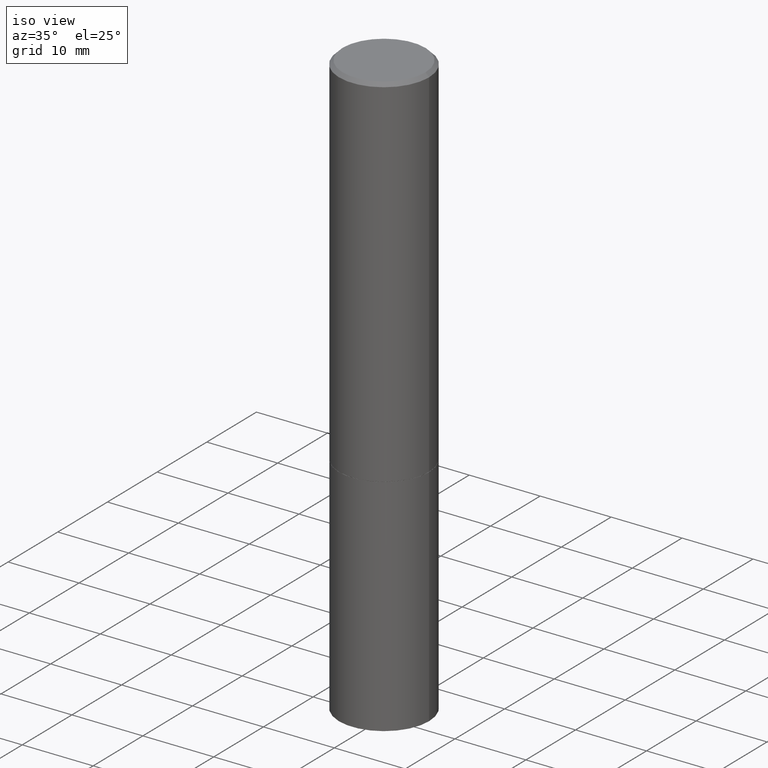
[diagram: clean part render]
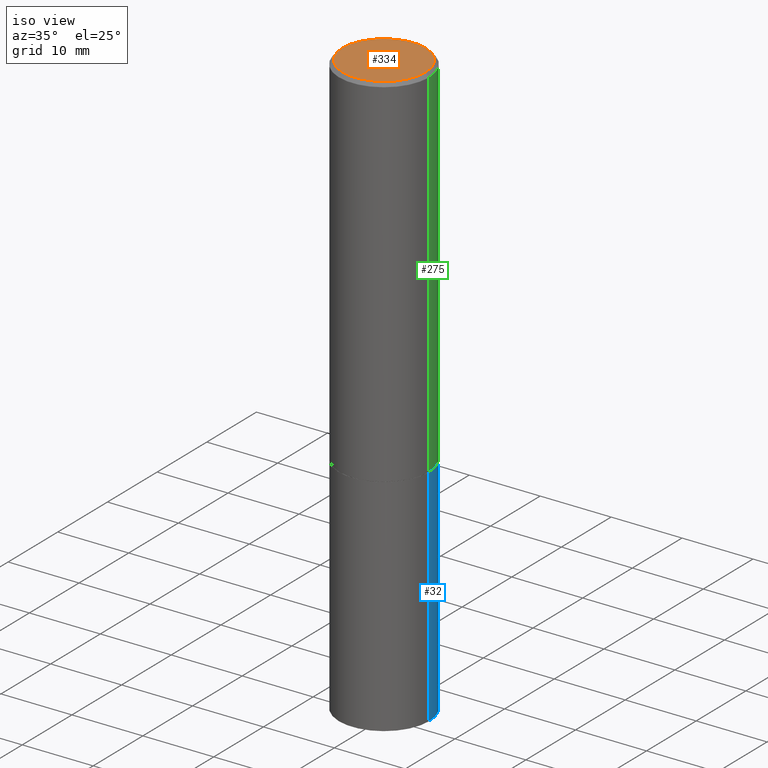
[diagram: same view with three faces highlighted in distinct colors, each labeled with its STEP entity id]
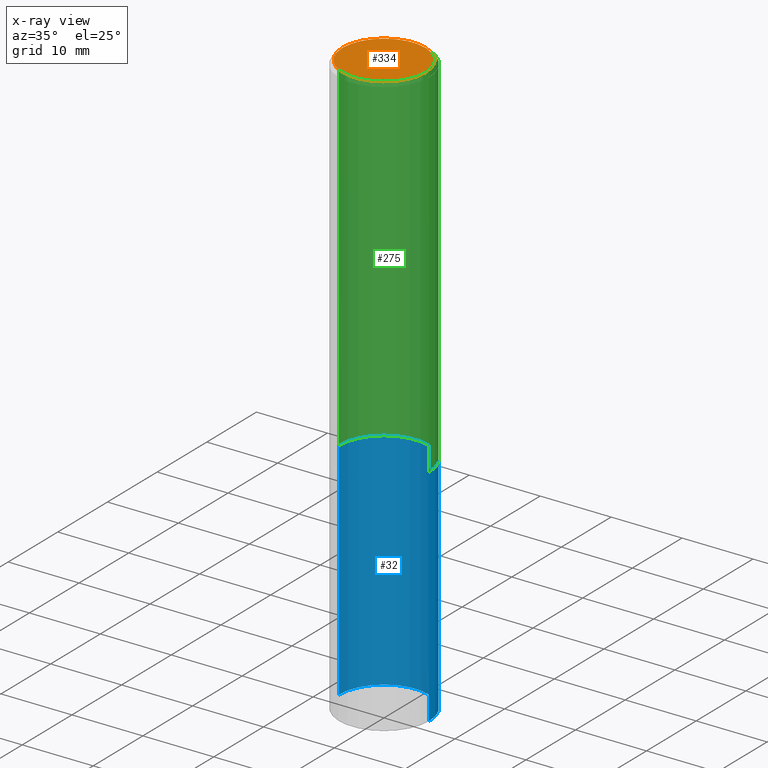
[diagram: x-ray of the same camera — body ghosted, the three highlighted faces saturated]
A machine part, iso view with three faces highlighted in distinct colors.
The next image is the same camera in x-ray (body ghosted, the three faces saturated) — at least one of them is partly hidden behind the body in this view.
Their STEP definitions:

[orange] entity #334 — the highlighted planar face has unit normal (0, -0, -1).
#5 = DIRECTION ( 'NONE',  ( 1.000000000000000000, -6.982962677686266711E-15, 4.876225828469314487E-29 ) ) ;
#29 = VERTEX_POINT ( 'NONE', #343 ) ;
#56 = EDGE_LOOP ( 'NONE', ( #163, #224 ) ) ;
#64 = DIRECTION ( 'NONE',  ( 2.438088387897960049E-29, -3.491481338843145188E-15, -1.000000000000000000 ) ) ;
#65 = EDGE_CURVE ( 'NONE', #213, #29, #298, .T. ) ;
#74 = AXIS2_PLACEMENT_3D ( 'NONE', #357, #138, #255 ) ;
#79 = CIRCLE ( 'NONE', #238, 0.2299999999999997324 ) ;
#124 = FACE_OUTER_BOUND ( 'NONE', #56, .T. ) ;
#127 = EDGE_CURVE ( 'NONE', #29, #213, #79, .T. ) ;
#138 = DIRECTION ( 'NONE',  ( -2.445468806185136597E-29, 3.491481338843145583E-15, 1.000000000000000000 ) ) ;
#142 = DIRECTION ( 'NONE',  ( -2.445468806185136597E-29, 3.491481338843145583E-15, 1.000000000000000000 ) ) ;
#163 = ORIENTED_EDGE ( 'NONE', *, *, #65, .T. ) ;
#204 = CARTESIAN_POINT ( 'NONE',  ( -0.2299999999999997324, 1.640996229256270744E-15, 4.268512490089056766E-18 ) ) ;
#208 = CARTESIAN_POINT ( 'NONE',  ( 1.606081415867839292E-15, 0.2299999999999997324, -8.009064516888723911E-16 ) ) ;
#213 = VERTEX_POINT ( 'NONE', #204 ) ;
#224 = ORIENTED_EDGE ( 'NONE', *, *, #127, .T. ) ;
#238 = AXIS2_PLACEMENT_3D ( 'NONE', #256, #142, #5 ) ;
#255 = DIRECTION ( 'NONE',  ( 1.000000000000000000, -6.982962677686266711E-15, 4.876225828469314487E-29 ) ) ;
#256 = CARTESIAN_POINT ( 'NONE',  ( -1.043851414335219820E-46, 1.490343170380447200E-32, 4.268512490100411279E-18 ) ) ;
#260 = DIRECTION ( 'NONE',  ( -1.000000000000000000, 6.982962677686265922E-15, -4.876176775795935793E-29 ) ) ;
#261 = PLANE ( 'NONE',  #277 ) ;
#277 = AXIS2_PLACEMENT_3D ( 'NONE', #208, #64, #260 ) ;
#298 = CIRCLE ( 'NONE', #74, 0.2299999999999997324 ) ;
#334 = ADVANCED_FACE ( 'NONE', ( #124 ), #261, .F. ) ;
#343 = CARTESIAN_POINT ( 'NONE',  ( 0.2299999999999997324, -1.681434332853597433E-15, 4.268512490111905999E-18 ) ) ;
#357 = CARTESIAN_POINT ( 'NONE',  ( -1.043851414335219820E-46, 1.490343170380447200E-32, 4.268512490100411279E-18 ) ) ;

[blue] entity #32 — the highlighted cylindrical surface (partial cylindrical patch) has radius 6.35 mm, axis along (-0, 0, 1).
#3 = VERTEX_POINT ( 'NONE', #323 ) ;
#6 = CYLINDRICAL_SURFACE ( 'NONE', #82, 0.2500000000000000000 ) ;
#24 = VECTOR ( 'NONE', #332, 39.37007874015748143 ) ;
#28 = CARTESIAN_POINT ( 'NONE',  ( -0.2500000000000000000, -7.388781675063007725E-15, -2.000000000000000000 ) ) ;
#30 = DIRECTION ( 'NONE',  ( 1.000000000000000000, -6.982962677686262766E-15, 0.000000000000000000 ) ) ;
#32 = ADVANCED_FACE ( 'NONE', ( #316 ), #6, .T. ) ;
#38 = EDGE_CURVE ( 'NONE', #135, #43, #155, .T. ) ;
#43 = VERTEX_POINT ( 'NONE', #98 ) ;
#48 = EDGE_CURVE ( 'NONE', #3, #118, #101, .T. ) ;
#51 = AXIS2_PLACEMENT_3D ( 'NONE', #166, #113, #30 ) ;
#58 = DIRECTION ( 'NONE',  ( -2.445468806185136597E-29, 3.491481338843145583E-15, 1.000000000000000000 ) ) ;
#82 = AXIS2_PLACEMENT_3D ( 'NONE', #120, #148, #258 ) ;
#98 = CARTESIAN_POINT ( 'NONE',  ( 0.2500000000000000000, -8.728703347107857054E-15, -2.000000000000000000 ) ) ;
#101 = LINE ( 'NONE', #106, #24 ) ;
#106 = CARTESIAN_POINT ( 'NONE',  ( -0.2500000000000000000, 1.776356839400250465E-15, -1.229733772563726445E-29 ) ) ;
#108 = EDGE_LOOP ( 'NONE', ( #151, #283, #244, #341 ) ) ;
#110 = EDGE_CURVE ( 'NONE', #135, #3, #161, .T. ) ;
#113 = DIRECTION ( 'NONE',  ( -2.445468806185136597E-29, 3.491481338843145583E-15, 1.000000000000000000 ) ) ;
#118 = VERTEX_POINT ( 'NONE', #28 ) ;
#120 = CARTESIAN_POINT ( 'NONE',  ( 0.000000000000000000, 0.000000000000000000, 0.000000000000000000 ) ) ;
#135 = VERTEX_POINT ( 'NONE', #278 ) ;
#143 = AXIS2_PLACEMENT_3D ( 'NONE', #310, #58, #149 ) ;
#148 = DIRECTION ( 'NONE',  ( -2.445468806185136597E-29, 3.491481338843145583E-15, 1.000000000000000000 ) ) ;
#149 = DIRECTION ( 'NONE',  ( 1.000000000000000000, -6.982962677686266711E-15, 0.000000000000000000 ) ) ;
#151 = ORIENTED_EDGE ( 'NONE', *, *, #110, .T. ) ;
#155 = LINE ( 'NONE', #265, #289 ) ;
#161 = CIRCLE ( 'NONE', #51, 0.2500000000000000000 ) ;
#166 = CARTESIAN_POINT ( 'NONE',  ( 7.947773620101693940E-29, -1.134731435124022443E-14, -3.250000000000000000 ) ) ;
#191 = EDGE_CURVE ( 'NONE', #43, #118, #276, .T. ) ;
#241 = DIRECTION ( 'NONE',  ( -2.445468806185136877E-29, 3.491481338843145188E-15, 1.000000000000000000 ) ) ;
#244 = ORIENTED_EDGE ( 'NONE', *, *, #191, .F. ) ;
#258 = DIRECTION ( 'NONE',  ( 1.000000000000000000, -6.982962677686266711E-15, 4.876176775795935793E-29 ) ) ;
#265 = CARTESIAN_POINT ( 'NONE',  ( 0.2500000000000000000, -1.745740669421566678E-15, 1.219044193948983948E-29 ) ) ;
#276 = CIRCLE ( 'NONE', #143, 0.2500000000000000000 ) ;
#278 = CARTESIAN_POINT ( 'NONE',  ( 0.2500000000000000000, -1.309305502066178953E-14, -3.250000000000000000 ) ) ;
#283 = ORIENTED_EDGE ( 'NONE', *, *, #48, .T. ) ;
#289 = VECTOR ( 'NONE', #241, 39.37007874015748143 ) ;
#310 = CARTESIAN_POINT ( 'NONE',  ( 4.890937612370273194E-29, -6.982962677686291165E-15, -2.000000000000000000 ) ) ;
#316 = FACE_OUTER_BOUND ( 'NONE', #108, .T. ) ;
#323 = CARTESIAN_POINT ( 'NONE',  ( -0.2500000000000000000, -7.388781675063007725E-15, -3.250000000000000000 ) ) ;
#332 = DIRECTION ( 'NONE',  ( -2.445468806185136877E-29, 3.491481338843145188E-15, 1.000000000000000000 ) ) ;
#341 = ORIENTED_EDGE ( 'NONE', *, *, #38, .F. ) ;

[green] entity #275 — the highlighted cylindrical surface (partial cylindrical patch) has radius 6.35 mm, axis along (-0, 0, 1).
#33 = VERTEX_POINT ( 'NONE', #123 ) ;
#37 = CARTESIAN_POINT ( 'NONE',  ( 0.000000000000000000, 0.000000000000000000, 0.000000000000000000 ) ) ;
#40 = LINE ( 'NONE', #345, #333 ) ;
#44 = EDGE_CURVE ( 'NONE', #107, #193, #230, .T. ) ;
#63 = FACE_OUTER_BOUND ( 'NONE', #111, .T. ) ;
#81 = EDGE_CURVE ( 'NONE', #325, #33, #179, .T. ) ;
#87 = ORIENTED_EDGE ( 'NONE', *, *, #44, .F. ) ;
#88 = DIRECTION ( 'NONE',  ( 1.000000000000000000, -6.982962677686266711E-15, 4.876176775795935793E-29 ) ) ;
#92 = CARTESIAN_POINT ( 'NONE',  ( -0.2499999999999998057, 1.675911042644702196E-15, -0.02000000000000005593 ) ) ;
#95 = DIRECTION ( 'NONE',  ( -2.445468806185136877E-29, 3.491481338843145188E-15, 1.000000000000000000 ) ) ;
#107 = VERTEX_POINT ( 'NONE', #365 ) ;
#111 = EDGE_LOOP ( 'NONE', ( #203, #176, #87, #293 ) ) ;
#123 = CARTESIAN_POINT ( 'NONE',  ( -0.2500000000000000000, -1.748293572161903489E-15, -1.998999999999999888 ) ) ;
#152 = CARTESIAN_POINT ( 'NONE',  ( 0.2500000000000000000, -8.725211865769014047E-15, -1.998999999999999888 ) ) ;
#168 = CARTESIAN_POINT ( 'NONE',  ( 4.888492143564087591E-29, -6.979471196347447369E-15, -1.998999999999999888 ) ) ;
#172 = DIRECTION ( 'NONE',  ( 1.000000000000000000, -6.982962677686266711E-15, 0.000000000000000000 ) ) ;
#176 = ORIENTED_EDGE ( 'NONE', *, *, #228, .T. ) ;
#177 = DIRECTION ( 'NONE',  ( -2.445468806185136597E-29, 3.491481338843145583E-15, 1.000000000000000000 ) ) ;
#179 = CIRCLE ( 'NONE', #366, 0.2500000000000000000 ) ;
#193 = VERTEX_POINT ( 'NONE', #92 ) ;
#195 = VECTOR ( 'NONE', #95, 39.37007874015748143 ) ;
#202 = DIRECTION ( 'NONE',  ( 1.000000000000000000, -6.982962677686266711E-15, 0.000000000000000000 ) ) ;
#203 = ORIENTED_EDGE ( 'NONE', *, *, #81, .T. ) ;
#215 = CARTESIAN_POINT ( 'NONE',  ( 4.890937612370287172E-31, -6.982962677686310098E-17, -0.02000000000000005593 ) ) ;
#228 = EDGE_CURVE ( 'NONE', #33, #193, #40, .T. ) ;
#230 = CIRCLE ( 'NONE', #249, 0.2499999999999998057 ) ;
#237 = LINE ( 'NONE', #349, #195 ) ;
#249 = AXIS2_PLACEMENT_3D ( 'NONE', #215, #280, #172 ) ;
#257 = CYLINDRICAL_SURFACE ( 'NONE', #348, 0.2499999999999998890 ) ;
#259 = DIRECTION ( 'NONE',  ( -2.445468806185136877E-29, 3.491481338843145188E-15, 1.000000000000000000 ) ) ;
#275 = ADVANCED_FACE ( 'NONE', ( #63 ), #257, .T. ) ;
#280 = DIRECTION ( 'NONE',  ( -2.445468806185136597E-29, 3.491481338843145583E-15, 1.000000000000000000 ) ) ;
#293 = ORIENTED_EDGE ( 'NONE', *, *, #344, .F. ) ;
#325 = VERTEX_POINT ( 'NONE', #152 ) ;
#333 = VECTOR ( 'NONE', #259, 39.37007874015748143 ) ;
#344 = EDGE_CURVE ( 'NONE', #325, #107, #237, .T. ) ;
#345 = CARTESIAN_POINT ( 'NONE',  ( -0.2499999999999998890, 1.776356839400249676E-15, -1.229733772563726025E-29 ) ) ;
#348 = AXIS2_PLACEMENT_3D ( 'NONE', #37, #177, #88 ) ;
#349 = CARTESIAN_POINT ( 'NONE',  ( 0.2499999999999998890, -1.745740669421565889E-15, 1.219044193948983388E-29 ) ) ;
#362 = DIRECTION ( 'NONE',  ( -2.445468806185136597E-29, 3.491481338843145583E-15, 1.000000000000000000 ) ) ;
#365 = CARTESIAN_POINT ( 'NONE',  ( 0.2499999999999998057, -1.784954126219744611E-15, -0.02000000000000005593 ) ) ;
#366 = AXIS2_PLACEMENT_3D ( 'NONE', #168, #362, #202 ) ;